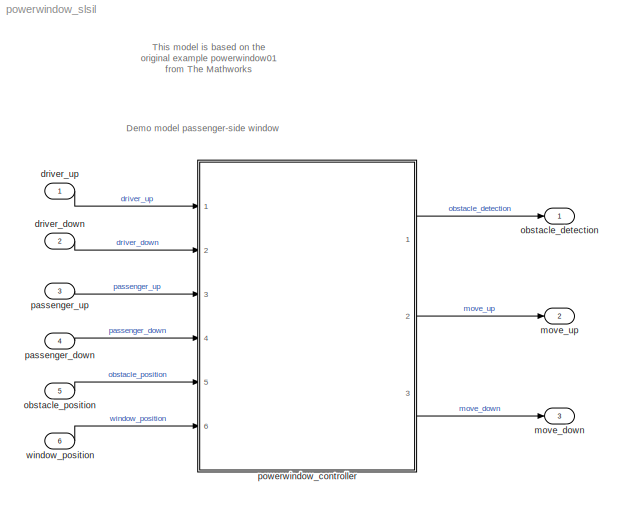
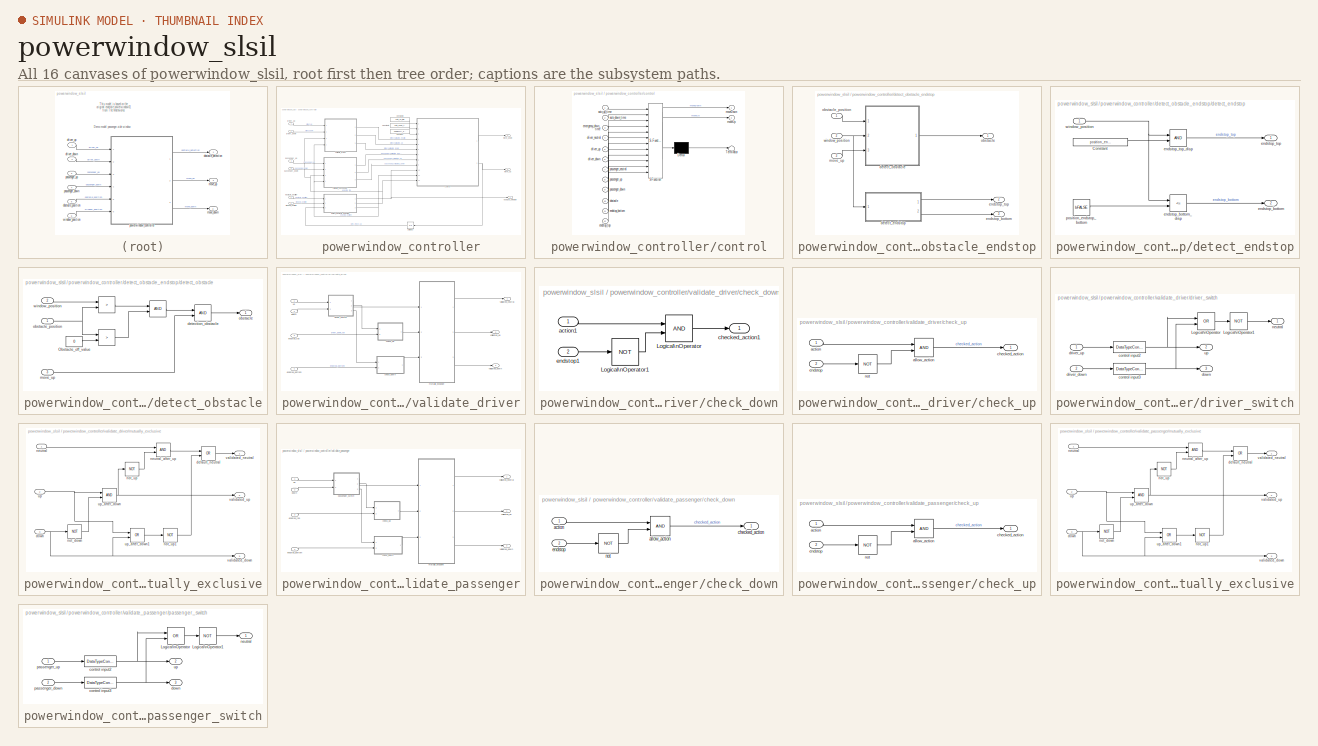
[diagram: thumbnail index - all 16 canvases of the model, root first then tree order]
MODEL powerwindow_slsil
KIND model
BLOCK [Inport] driver_down
  OutMax = 1
  OutMin = 0
  Port = 2
  SID = 456
BLOCK [Inport] driver_up
  OutMax = 1
  OutMin = 0
  SID = 455
BLOCK [Outport] move_down
  OutMax = 1
  OutMin = 0
  Port = 3
  SID = 464
BLOCK [Outport] move_up
  OutMax = 1
  OutMin = 0
  Port = 2
  SID = 463
BLOCK [Outport] obstacle_detection
  OutMax = 1
  OutMin = 0
  SID = 462
BLOCK [Inport] obstacle_position
  OutDataTypeStr = fixdt(0,16,0.001,0)
  OutMax = 0.45
  OutMin = 0
  Port = 5
  SID = 459
BLOCK [Inport] passenger_down
  OutMax = 1
  OutMin = 0
  Port = 4
  SID = 458
BLOCK [Inport] passenger_up
  OutMax = 1
  OutMin = 0
  Port = 3
  SID = 457
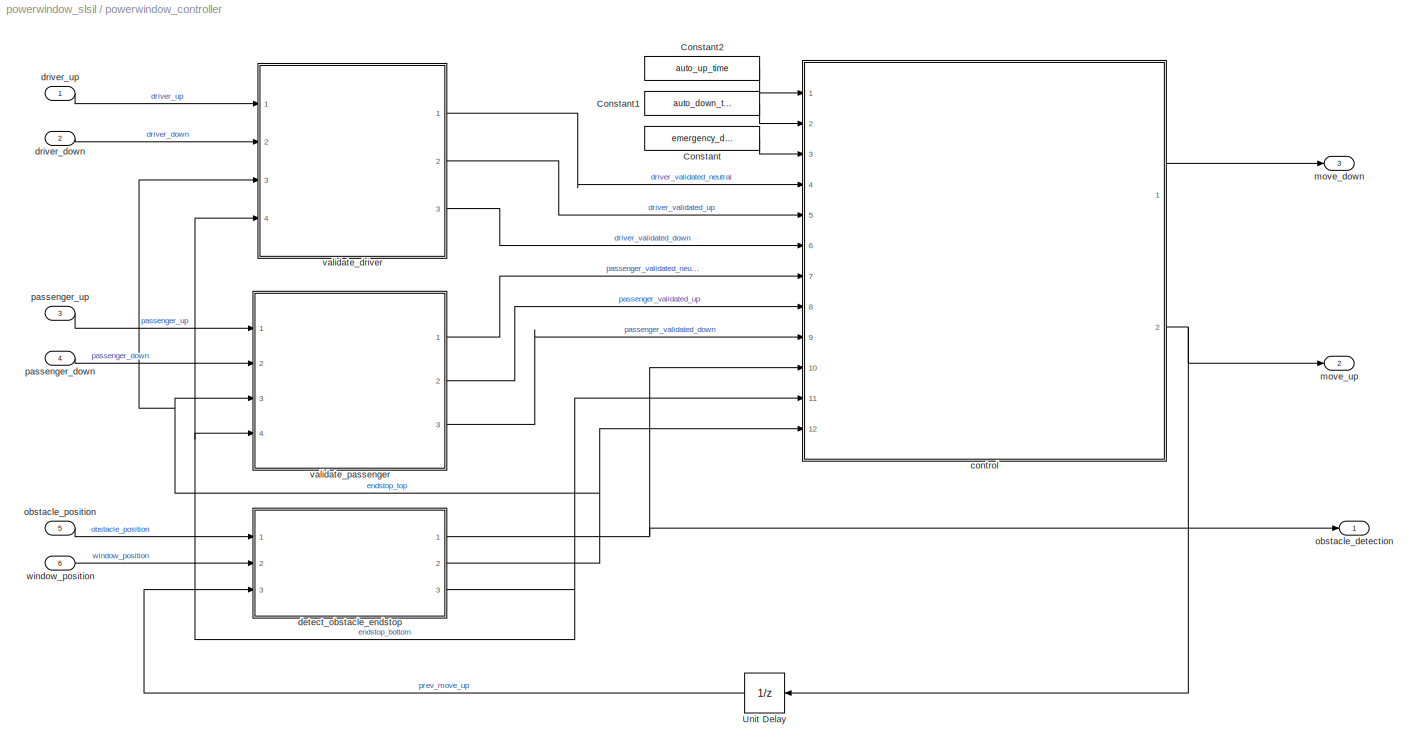
BLOCK [SubSystem] powerwindow_controller
  Ports = [6, 3]
  RTWFcnName = powerwindow_controller
  RTWFcnNameOpts = User specified
  RTWFileNameOpts = Use function name
  RTWSystemCode = Nonreusable function
  SID = 314
BLOCK [Constant] powerwindow_controller/Constant
  OutDataTypeStr = uint8
  OutMax = 255
  OutMin = 0
  SID = 323
  Value = emergency_down_time
BLOCK [Constant] powerwindow_controller/Constant1
  OutDataTypeStr = uint8
  OutMax = 255
  OutMin = 0
  SID = 324
  Value = auto_down_time
BLOCK [Constant] powerwindow_controller/Constant2
  OutDataTypeStr = uint8
  OutMax = 255
  OutMin = 0
  SID = 325
  Value = auto_up_time
BLOCK [UnitDelay] powerwindow_controller/Unit Delay
  HasFrameUpgradeWarning = on
  SID = 326
  SampleTime = -1
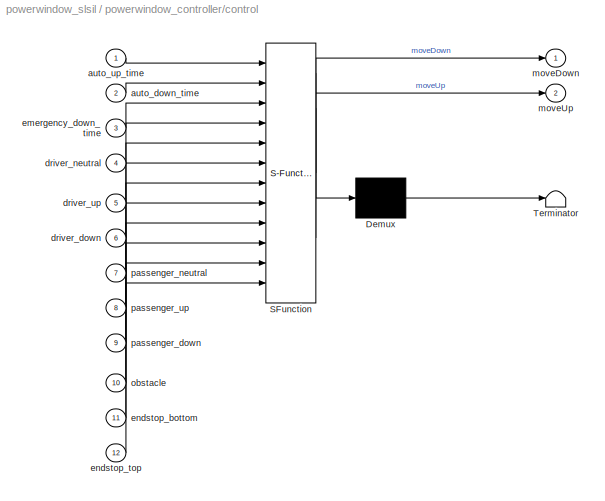
BLOCK [SubSystem] powerwindow_controller/control
  ErrorFcn = Stateflow.Translate.translate
  FunctionInterfaceSpec = Allow arguments
  PermitHierarchicalResolution = ExplicitOnly
  Ports = [12, 2]
  SFBlockType = Chart
  SID = 327
BLOCK [Demux] powerwindow_controller/control/ Demux 
  Outputs = 1
  Ports = [1, 1]
  SID = 327::66
BLOCK [S-Function] powerwindow_controller/control/ SFunction 
  EnableBusSupport = off
  FunctionName = sf_sfun
  PortCounts = [12 3]
  Ports = [12, 3]
  SFcnIsStateOwnerBlock = off
  SFunctionDeploymentMode = off
  SID = 327::65
  Tag = Stateflow S-Function powerwindow_slsil 1
BLOCK [Terminator] powerwindow_controller/control/ Terminator 
  SID = 327::67
BLOCK [Inport] powerwindow_controller/control/auto_down_time
  Port = 2
  SID = 327::40
BLOCK [Inport] powerwindow_controller/control/auto_up_time
  SID = 327::32
BLOCK [Inport] powerwindow_controller/control/driver_down
  Port = 6
  SID = 327::44
BLOCK [Inport] powerwindow_controller/control/driver_neutral
  Port = 4
  SID = 327::42
BLOCK [Inport] powerwindow_controller/control/driver_up
  Port = 5
  SID = 327::43
BLOCK [Inport] powerwindow_controller/control/emergency_down_time
  Port = 3
  SID = 327::41
BLOCK [Inport] powerwindow_controller/control/endstop_bottom
  Port = 11
  SID = 327::49
BLOCK [Inport] powerwindow_controller/control/endstop_top
  Port = 12
  SID = 327::50
BLOCK [Outport] powerwindow_controller/control/moveDown
  SID = 327::51
BLOCK [Outport] powerwindow_controller/control/moveUp
  Port = 2
  SID = 327::52
BLOCK [Inport] powerwindow_controller/control/obstacle
  Port = 10
  SID = 327::48
BLOCK [Inport] powerwindow_controller/control/passenger_down
  Port = 9
  SID = 327::47
BLOCK [Inport] powerwindow_controller/control/passenger_neutral
  Port = 7
  SID = 327::45
BLOCK [Inport] powerwindow_controller/control/passenger_up
  Port = 8
  SID = 327::46
BLOCK [SubSystem] powerwindow_controller/detect_obstacle_endstop
  AttributesFormatString = \n%<Description>
  Description = \n
  Ports = [3, 3]
  RTWFcnName = detect_obstacle_endstop
  RTWFcnNameOpts = User specified
  RTWFileNameOpts = Use subsystem name
  RTWSystemCode = Nonreusable function
  SID = 567
  TreatAsAtomicUnit = on
BLOCK [SubSystem] powerwindow_controller/detect_obstacle_endstop/detect_endstop
  Ports = [1, 2]
  SID = 571
BLOCK [Constant] powerwindow_controller/detect_obstacle_endstop/detect_endstop/Constant
  OutDataTypeStr = fixdt(0,16,0.001,0)
  OutMax = 0.45
  OutMin = 0.35
  SID = 573
  Value = position_endstop_top
BLOCK [Outport] powerwindow_controller/detect_obstacle_endstop/detect_endstop/endstop_bottom
  Port = 2
  SID = 578
BLOCK [RelationalOperator] powerwindow_controller/detect_obstacle_endstop/detect_endstop/endstop_bottom_disp
  AttributesFormatString = %<Description>
  InputSameDT = off
  Operator = <=
  OutDataTypeStr = boolean
  Ports = [2, 1]
  SID = 574
BLOCK [Outport] powerwindow_controller/detect_obstacle_endstop/detect_endstop/endstop_top
  SID = 577
BLOCK [RelationalOperator] powerwindow_controller/detect_obstacle_endstop/detect_endstop/endstop_top_disp
  AttributesFormatString = %<Description>
  InputSameDT = off
  OutDataTypeStr = boolean
  Ports = [2, 1]
  SID = 575
BLOCK [Constant] powerwindow_controller/detect_obstacle_endstop/detect_endstop/position_endstop_bottom
  OutDataTypeStr = Inherit: Inherit via back propagation
  SID = 576
  Value = bFALSE
BLOCK [Inport] powerwindow_controller/detect_obstacle_endstop/detect_endstop/window_position
  SID = 572
BLOCK [SubSystem] powerwindow_controller/detect_obstacle_endstop/detect_obstacle
  Ports = [3, 1]
  SID = 579
BLOCK [Logic] powerwindow_controller/detect_obstacle_endstop/detect_obstacle/ 
  AllPortsSameDT = off
  OutDataTypeStr = boolean
  Ports = [2, 1]
  SID = 583
BLOCK [RelationalOperator] powerwindow_controller/detect_obstacle_endstop/detect_obstacle/  
  InputSameDT = off
  Operator = >
  OutDataTypeStr = boolean
  Ports = [2, 1]
  SID = 584
BLOCK [RelationalOperator] powerwindow_controller/detect_obstacle_endstop/detect_obstacle/   
  InputSameDT = off
  Operator = >
  OutDataTypeStr = boolean
  Ports = [2, 1]
  SID = 585
BLOCK [Constant] powerwindow_controller/detect_obstacle_endstop/detect_obstacle/Obstacle_off_value
  OutDataTypeStr = Inherit: Inherit via back propagation
  SID = 586
  Value = 0
BLOCK [Logic] powerwindow_controller/detect_obstacle_endstop/detect_obstacle/detection_obstacle
  AllPortsSameDT = off
  AttributesFormatString = %<Description>
  OutDataTypeStr = boolean
  Ports = [2, 1]
  SID = 587
BLOCK [Inport] powerwindow_controller/detect_obstacle_endstop/detect_obstacle/move_up
  Port = 3
  SID = 582
BLOCK [Outport] powerwindow_controller/detect_obstacle_endstop/detect_obstacle/obstacle
  SID = 588
BLOCK [Inport] powerwindow_controller/detect_obstacle_endstop/detect_obstacle/obstacle_position
  SID = 580
BLOCK [Inport] powerwindow_controller/detect_obstacle_endstop/detect_obstacle/window_position
  Port = 2
  SID = 581
BLOCK [Outport] powerwindow_controller/detect_obstacle_endstop/endstop_bottom
  Port = 3
  SID = 591
BLOCK [Outport] powerwindow_controller/detect_obstacle_endstop/endstop_top
  Port = 2
  SID = 590
BLOCK [Inport] powerwindow_controller/detect_obstacle_endstop/move_up
  Port = 3
  SID = 570
BLOCK [Outport] powerwindow_controller/detect_obstacle_endstop/obstacle
  SID = 589
BLOCK [Inport] powerwindow_controller/detect_obstacle_endstop/obstacle_position
  SID = 568
BLOCK [Inport] powerwindow_controller/detect_obstacle_endstop/window_position
  Port = 2
  SID = 569
BLOCK [Inport] powerwindow_controller/driver_down
  OutDataTypeStr = boolean
  OutMax = 1
  OutMin = 0
  Port = 2
  SID = 318
BLOCK [Inport] powerwindow_controller/driver_up
  OutDataTypeStr = boolean
  OutMax = 1
  OutMin = 0
  PortDimensions = 1
  SID = 317
BLOCK [Outport] powerwindow_controller/move_down
  OutDataTypeStr = boolean
  OutMax = 1
  OutMin = 0
  Port = 3
  PortDimensions = 1
  SID = 443
BLOCK [Outport] powerwindow_controller/move_up
  OutDataTypeStr = boolean
  OutMax = 1
  OutMin = 0
  Port = 2
  PortDimensions = 1
  SID = 442
BLOCK [Outport] powerwindow_controller/obstacle_detection
  OutDataTypeStr = boolean
  OutMax = 1
  OutMin = 0
  PortDimensions = 1
  SID = 441
BLOCK [Inport] powerwindow_controller/obstacle_position
  OutDataTypeStr = fixdt(0,16,0.001,0)
  OutMax = 0.45
  OutMin = 0
  Port = 5
  PortDimensions = 1
  SID = 321
BLOCK [Inport] powerwindow_controller/passenger_down
  OutDataTypeStr = boolean
  OutMax = 1
  OutMin = 0
  Port = 4
  PortDimensions = 1
  SID = 320
BLOCK [Inport] powerwindow_controller/passenger_up
  OutDataTypeStr = boolean
  OutMax = 1
  OutMin = 0
  Port = 3
  PortDimensions = 1
  SID = 319
BLOCK [SubSystem] powerwindow_controller/validate_driver
  Ports = [4, 3]
  RTWFcnName = validate_driver
  RTWFcnNameOpts = User specified
  RTWFileNameOpts = Use subsystem name
  RTWSystemCode = Nonreusable function
  SID = 466
  TreatAsAtomicUnit = on
BLOCK [SubSystem] powerwindow_controller/validate_driver/check_down
  Ports = [2, 1]
  SID = 473
BLOCK [Logic] powerwindow_controller/validate_driver/check_down/Logical\nOperator
  AllPortsSameDT = off
  OutDataTypeStr = boolean
  Ports = [2, 1]
  SID = 476
BLOCK [Logic] powerwindow_controller/validate_driver/check_down/Logical\nOperator1
  AllPortsSameDT = off
  Inputs = 1
  Operator = NOT
  OutDataTypeStr = boolean
  Ports = [1, 1]
  SID = 477
BLOCK [Inport] powerwindow_controller/validate_driver/check_down/action1
  SID = 474
BLOCK [Outport] powerwindow_controller/validate_driver/check_down/checked_action1
  SID = 478
BLOCK [Inport] powerwindow_controller/validate_driver/check_down/endstop1
  Port = 2
  SID = 475
BLOCK [SubSystem] powerwindow_controller/validate_driver/check_up
  Ports = [2, 1]
  SID = 479
BLOCK [Inport] powerwindow_controller/validate_driver/check_up/action
  SID = 480
BLOCK [Logic] powerwindow_controller/validate_driver/check_up/allow_action
  AllPortsSameDT = off
  OutDataTypeStr = boolean
  Ports = [2, 1]
  SID = 482
BLOCK [Outport] powerwindow_controller/validate_driver/check_up/checked_action
  SID = 484
BLOCK [Inport] powerwindow_controller/validate_driver/check_up/endstop
  Port = 2
  SID = 481
BLOCK [Logic] powerwindow_controller/validate_driver/check_up/not
  AllPortsSameDT = off
  Inputs = 1
  Operator = NOT
  OutDataTypeStr = boolean
  Ports = [1, 1]
  SID = 483
BLOCK [Inport] powerwindow_controller/validate_driver/down
  OutDataTypeStr = boolean
  Port = 2
  PortDimensions = 1
  SID = 470
  SampleTime = [0.01,0]
  SamplingMode = Sample based
  SignalType = real
BLOCK [SubSystem] powerwindow_controller/validate_driver/driver_switch
  Ports = [2, 3]
  SID = 485
BLOCK [Logic] powerwindow_controller/validate_driver/driver_switch/Logical\nOperator
  AllPortsSameDT = off
  Operator = OR
  OutDataTypeStr = boolean
  Ports = [2, 1]
  SID = 488
BLOCK [Logic] powerwindow_controller/validate_driver/driver_switch/Logical\nOperator1
  AllPortsSameDT = off
  Inputs = 1
  Operator = NOT
  OutDataTypeStr = boolean
  Ports = [1, 1]
  SID = 489
BLOCK [DataTypeConversion] powerwindow_controller/validate_driver/driver_switch/control input2
  OutDataTypeStr = boolean
  SID = 490
BLOCK [DataTypeConversion] powerwindow_controller/validate_driver/driver_switch/control input3
  OutDataTypeStr = boolean
  SID = 491
BLOCK [Outport] powerwindow_controller/validate_driver/driver_switch/down
  Port = 3
  SID = 494
BLOCK [Inport] powerwindow_controller/validate_driver/driver_switch/driver_down
  Port = 2
  SID = 487
BLOCK [Inport] powerwindow_controller/validate_driver/driver_switch/driver_up
  SID = 486
BLOCK [Outport] powerwindow_controller/validate_driver/driver_switch/neutral
  SID = 492
BLOCK [Outport] powerwindow_controller/validate_driver/driver_switch/up
  Port = 2
  SID = 493
BLOCK [Inport] powerwindow_controller/validate_driver/endstop_bottom
  OutDataTypeStr = boolean
  Port = 4
  PortDimensions = 1
  SID = 472
  SampleTime = [0.01,0]
  SamplingMode = Sample based
  SignalType = real
BLOCK [Inport] powerwindow_controller/validate_driver/endstop_top
  OutDataTypeStr = boolean
  Port = 3
  PortDimensions = 1
  SID = 471
  SampleTime = [0.01,0]
  SamplingMode = Sample based
  SignalType = real
BLOCK [SubSystem] powerwindow_controller/validate_driver/mutually_exclusive
  Ports = [3, 3]
  SID = 495
BLOCK [Logic] powerwindow_controller/validate_driver/mutually_exclusive/default_neutral
  AllPortsSameDT = off
  Operator = OR
  OutDataTypeStr = boolean
  Ports = [2, 1]
  SID = 499
BLOCK [Inport] powerwindow_controller/validate_driver/mutually_exclusive/down
  Port = 3
  SID = 498
BLOCK [Inport] powerwindow_controller/validate_driver/mutually_exclusive/neutral
  SID = 496
BLOCK [Logic] powerwindow_controller/validate_driver/mutually_exclusive/neutral_after_up
  AllPortsSameDT = off
  OutDataTypeStr = boolean
  Ports = [2, 1]
  SID = 500
BLOCK [Logic] powerwindow_controller/validate_driver/mutually_exclusive/not_down
  AllPortsSameDT = off
  Inputs = 1
  Operator = NOT
  OutDataTypeStr = boolean
  Ports = [1, 1]
  SID = 501
BLOCK [Logic] powerwindow_controller/validate_driver/mutually_exclusive/not_up
  AllPortsSameDT = off
  Inputs = 1
  Operator = NOT
  OutDataTypeStr = boolean
  Ports = [1, 1]
  SID = 502
BLOCK [Logic] powerwindow_controller/validate_driver/mutually_exclusive/not_up1
  AllPortsSameDT = off
  Inputs = 1
  Operator = NOT
  OutDataTypeStr = boolean
  Ports = [1, 1]
  SID = 503
BLOCK [Inport] powerwindow_controller/validate_driver/mutually_exclusive/up
  Port = 2
  SID = 497
BLOCK [Logic] powerwindow_controller/validate_driver/mutually_exclusive/up_after_down
  AllPortsSameDT = off
  OutDataTypeStr = boolean
  Ports = [2, 1]
  SID = 504
BLOCK [Logic] powerwindow_controller/validate_driver/mutually_exclusive/up_after_down1
  AllPortsSameDT = off
  Operator = OR
  OutDataTypeStr = boolean
  Ports = [2, 1]
  SID = 505
BLOCK [Outport] powerwindow_controller/validate_driver/mutually_exclusive/validated_down
  Port = 3
  SID = 508
BLOCK [Outport] powerwindow_controller/validate_driver/mutually_exclusive/validated_neutral
  SID = 506
BLOCK [Outport] powerwindow_controller/validate_driver/mutually_exclusive/validated_up
  Port = 2
  SID = 507
BLOCK [Inport] powerwindow_controller/validate_driver/up
  OutDataTypeStr = boolean
  PortDimensions = 1
  SID = 469
  SampleTime = [0.01,0]
  SamplingMode = Sample based
  SignalType = real
BLOCK [Outport] powerwindow_controller/validate_driver/validated_down
  OutDataTypeStr = boolean
  Port = 3
  PortDimensions = 1
  SID = 511
  SampleTime = [0.01,0]
  SamplingMode = Sample based
  SignalType = real
BLOCK [Outport] powerwindow_controller/validate_driver/validated_neutral
  OutDataTypeStr = boolean
  PortDimensions = 1
  SID = 509
  SampleTime = [0.01,0]
  SamplingMode = Sample based
  SignalType = real
BLOCK [Outport] powerwindow_controller/validate_driver/validated_up
  OutDataTypeStr = boolean
  Port = 2
  PortDimensions = 1
  SID = 510
  SampleTime = [0.01,0]
  SamplingMode = Sample based
  SignalType = real
BLOCK [SubSystem] powerwindow_controller/validate_passenger
  Ports = [4, 3]
  RTWFcnName = validate_passenger
  RTWFcnNameOpts = User specified
  RTWFileNameOpts = Use function name
  RTWSystemCode = Nonreusable function
  SID = 397
  TreatAsAtomicUnit = on
BLOCK [SubSystem] powerwindow_controller/validate_passenger/check_down
  Ports = [2, 1]
  SID = 402
BLOCK [Inport] powerwindow_controller/validate_passenger/check_down/action
  SID = 403
BLOCK [Logic] powerwindow_controller/validate_passenger/check_down/allow_action
  AllPortsSameDT = off
  OutDataTypeStr = boolean
  Ports = [2, 1]
  SID = 405
BLOCK [Outport] powerwindow_controller/validate_passenger/check_down/checked_action
  SID = 407
BLOCK [Inport] powerwindow_controller/validate_passenger/check_down/endstop
  Port = 2
  SID = 404
BLOCK [Logic] powerwindow_controller/validate_passenger/check_down/not
  AllPortsSameDT = off
  Inputs = 1
  Operator = NOT
  OutDataTypeStr = boolean
  Ports = [1, 1]
  SID = 406
BLOCK [SubSystem] powerwindow_controller/validate_passenger/check_up
  Ports = [2, 1]
  SID = 408
BLOCK [Inport] powerwindow_controller/validate_passenger/check_up/action
  SID = 409
BLOCK [Logic] powerwindow_controller/validate_passenger/check_up/allow_action
  AllPortsSameDT = off
  OutDataTypeStr = boolean
  Ports = [2, 1]
  SID = 411
BLOCK [Outport] powerwindow_controller/validate_passenger/check_up/checked_action
  SID = 413
BLOCK [Inport] powerwindow_controller/validate_passenger/check_up/endstop
  Port = 2
  SID = 410
BLOCK [Logic] powerwindow_controller/validate_passenger/check_up/not
  AllPortsSameDT = off
  Inputs = 1
  Operator = NOT
  OutDataTypeStr = boolean
  Ports = [1, 1]
  SID = 412
BLOCK [Inport] powerwindow_controller/validate_passenger/down
  Port = 2
  SID = 399
BLOCK [Inport] powerwindow_controller/validate_passenger/endstop_bottom
  Port = 4
  SID = 401
BLOCK [Inport] powerwindow_controller/validate_passenger/endstop_top
  Port = 3
  SID = 400
BLOCK [SubSystem] powerwindow_controller/validate_passenger/mutually_exclusive
  Ports = [3, 3]
  SID = 414
BLOCK [Logic] powerwindow_controller/validate_passenger/mutually_exclusive/default_neutral
  AllPortsSameDT = off
  Operator = OR
  OutDataTypeStr = boolean
  Ports = [2, 1]
  SID = 418
BLOCK [Inport] powerwindow_controller/validate_passenger/mutually_exclusive/down
  Port = 3
  SID = 417
BLOCK [Inport] powerwindow_controller/validate_passenger/mutually_exclusive/neutral
  SID = 415
BLOCK [Logic] powerwindow_controller/validate_passenger/mutually_exclusive/neutral_after_up
  AllPortsSameDT = off
  OutDataTypeStr = boolean
  Ports = [2, 1]
  SID = 419
BLOCK [Logic] powerwindow_controller/validate_passenger/mutually_exclusive/not_down
  AllPortsSameDT = off
  Inputs = 1
  Operator = NOT
  OutDataTypeStr = boolean
  Ports = [1, 1]
  SID = 420
BLOCK [Logic] powerwindow_controller/validate_passenger/mutually_exclusive/not_up
  AllPortsSameDT = off
  Inputs = 1
  Operator = NOT
  OutDataTypeStr = boolean
  Ports = [1, 1]
  SID = 421
BLOCK [Logic] powerwindow_controller/validate_passenger/mutually_exclusive/not_up1
  AllPortsSameDT = off
  Inputs = 1
  Operator = NOT
  OutDataTypeStr = boolean
  Ports = [1, 1]
  SID = 422
BLOCK [Inport] powerwindow_controller/validate_passenger/mutually_exclusive/up
  Port = 2
  SID = 416
BLOCK [Logic] powerwindow_controller/validate_passenger/mutually_exclusive/up_after_down
  AllPortsSameDT = off
  OutDataTypeStr = boolean
  Ports = [2, 1]
  SID = 423
BLOCK [Logic] powerwindow_controller/validate_passenger/mutually_exclusive/up_after_down1
  AllPortsSameDT = off
  Operator = OR
  OutDataTypeStr = boolean
  Ports = [2, 1]
  SID = 424
BLOCK [Outport] powerwindow_controller/validate_passenger/mutually_exclusive/validated_down
  Port = 3
  SID = 427
BLOCK [Outport] powerwindow_controller/validate_passenger/mutually_exclusive/validated_neutral
  SID = 425
BLOCK [Outport] powerwindow_controller/validate_passenger/mutually_exclusive/validated_up
  Port = 2
  SID = 426
BLOCK [SubSystem] powerwindow_controller/validate_passenger/passenger_switch
  Ports = [2, 3]
  SID = 428
BLOCK [Logic] powerwindow_controller/validate_passenger/passenger_switch/Logical\nOperator
  AllPortsSameDT = off
  Operator = OR
  OutDataTypeStr = boolean
  Ports = [2, 1]
  SID = 431
BLOCK [Logic] powerwindow_controller/validate_passenger/passenger_switch/Logical\nOperator1
  AllPortsSameDT = off
  Inputs = 1
  Operator = NOT
  OutDataTypeStr = boolean
  Ports = [1, 1]
  SID = 432
BLOCK [DataTypeConversion] powerwindow_controller/validate_passenger/passenger_switch/control input2
  OutDataTypeStr = boolean
  SID = 433
BLOCK [DataTypeConversion] powerwindow_controller/validate_passenger/passenger_switch/control input3
  OutDataTypeStr = boolean
  SID = 434
BLOCK [Outport] powerwindow_controller/validate_passenger/passenger_switch/down
  Port = 3
  SID = 437
BLOCK [Outport] powerwindow_controller/validate_passenger/passenger_switch/neutral
  SID = 435
BLOCK [Inport] powerwindow_controller/validate_passenger/passenger_switch/passenger_down
  Port = 2
  SID = 430
BLOCK [Inport] powerwindow_controller/validate_passenger/passenger_switch/passenger_up
  SID = 429
BLOCK [Outport] powerwindow_controller/validate_passenger/passenger_switch/up
  Port = 2
  SID = 436
BLOCK [Inport] powerwindow_controller/validate_passenger/up
  SID = 398
BLOCK [Outport] powerwindow_controller/validate_passenger/validated_down
  Port = 3
  SID = 440
BLOCK [Outport] powerwindow_controller/validate_passenger/validated_neutral
  SID = 438
BLOCK [Outport] powerwindow_controller/validate_passenger/validated_up
  Port = 2
  SID = 439
BLOCK [Inport] powerwindow_controller/window_position
  OutDataTypeStr = fixdt(0,16,0.001,0)
  OutMax = 0.45
  OutMin = 0
  Port = 6
  PortDimensions = 1
  SID = 322
BLOCK [Inport] window_position
  OutDataTypeStr = fixdt(0,16,0.001,0)
  OutMax = 0.45
  OutMin = 0
  Port = 6
  SID = 460
ANNOTATION (root): Demo model passenger-side window
ANNOTATION (root): This model is based on the\noriginal example powerwindow01\nfrom The Mathworks
ANNOTATION powerwindow_controller: \n \n
LINE driver_down:1 -> powerwindow_controller:2
LINE driver_up:1 -> powerwindow_controller:1
LINE obstacle_position:1 -> powerwindow_controller:5
LINE passenger_down:1 -> powerwindow_controller:4
LINE passenger_up:1 -> powerwindow_controller:3
LINE powerwindow_controller/Constant1:1 -> powerwindow_controller/control:2
LINE powerwindow_controller/Constant2:1 -> powerwindow_controller/control:1
LINE powerwindow_controller/Constant:1 -> powerwindow_controller/control:3
LINE powerwindow_controller/Unit Delay:1 -> powerwindow_controller/detect_obstacle_endstop:3
LINE powerwindow_controller/control/ Demux :1 -> powerwindow_controller/control/ Terminator :1
LINE powerwindow_controller/control/ SFunction :1 -> powerwindow_controller/control/ Demux :1
LINE powerwindow_controller/control/ SFunction :2 -> powerwindow_controller/control/moveDown:1
LINE powerwindow_controller/control/ SFunction :3 -> powerwindow_controller/control/moveUp:1
LINE powerwindow_controller/control/auto_down_time:1 -> powerwindow_controller/control/ SFunction :2
LINE powerwindow_controller/control/auto_up_time:1 -> powerwindow_controller/control/ SFunction :1
LINE powerwindow_controller/control/driver_down:1 -> powerwindow_controller/control/ SFunction :6
LINE powerwindow_controller/control/driver_neutral:1 -> powerwindow_controller/control/ SFunction :4
LINE powerwindow_controller/control/driver_up:1 -> powerwindow_controller/control/ SFunction :5
LINE powerwindow_controller/control/emergency_down_time:1 -> powerwindow_controller/control/ SFunction :3
LINE powerwindow_controller/control/endstop_bottom:1 -> powerwindow_controller/control/ SFunction :11
LINE powerwindow_controller/control/endstop_top:1 -> powerwindow_controller/control/ SFunction :12
LINE powerwindow_controller/control/obstacle:1 -> powerwindow_controller/control/ SFunction :10
LINE powerwindow_controller/control/passenger_down:1 -> powerwindow_controller/control/ SFunction :9
LINE powerwindow_controller/control/passenger_neutral:1 -> powerwindow_controller/control/ SFunction :7
LINE powerwindow_controller/control/passenger_up:1 -> powerwindow_controller/control/ SFunction :8
LINE powerwindow_controller/control:1 -> powerwindow_controller/move_down:1
NET powerwindow_controller/control:2 -> powerwindow_controller/Unit Delay:1, powerwindow_controller/move_up:1
LINE powerwindow_controller/detect_obstacle_endstop/detect_endstop/Constant:1 -> powerwindow_controller/detect_obstacle_endstop/detect_endstop/endstop_top_disp:2
LINE powerwindow_controller/detect_obstacle_endstop/detect_endstop/endstop_bottom_disp:1 -> powerwindow_controller/detect_obstacle_endstop/detect_endstop/endstop_bottom:1
LINE powerwindow_controller/detect_obstacle_endstop/detect_endstop/endstop_top_disp:1 -> powerwindow_controller/detect_obstacle_endstop/detect_endstop/endstop_top:1
LINE powerwindow_controller/detect_obstacle_endstop/detect_endstop/position_endstop_bottom:1 -> powerwindow_controller/detect_obstacle_endstop/detect_endstop/endstop_bottom_disp:2
NET powerwindow_controller/detect_obstacle_endstop/detect_endstop/window_position:1 -> powerwindow_controller/detect_obstacle_endstop/detect_endstop/endstop_bottom_disp:1, powerwindow_controller/detect_obstacle_endstop/detect_endstop/endstop_top_disp:1
LINE powerwindow_controller/detect_obstacle_endstop/detect_endstop:1 -> powerwindow_controller/detect_obstacle_endstop/endstop_top:1
LINE powerwindow_controller/detect_obstacle_endstop/detect_endstop:2 -> powerwindow_controller/detect_obstacle_endstop/endstop_bottom:1
LINE powerwindow_controller/detect_obstacle_endstop/detect_obstacle/   :1 -> powerwindow_controller/detect_obstacle_endstop/detect_obstacle/ :2
LINE powerwindow_controller/detect_obstacle_endstop/detect_obstacle/  :1 -> powerwindow_controller/detect_obstacle_endstop/detect_obstacle/ :1
LINE powerwindow_controller/detect_obstacle_endstop/detect_obstacle/ :1 -> powerwindow_controller/detect_obstacle_endstop/detect_obstacle/detection_obstacle:1
LINE powerwindow_controller/detect_obstacle_endstop/detect_obstacle/Obstacle_off_value:1 -> powerwindow_controller/detect_obstacle_endstop/detect_obstacle/   :2
LINE powerwindow_controller/detect_obstacle_endstop/detect_obstacle/detection_obstacle:1 -> powerwindow_controller/detect_obstacle_endstop/detect_obstacle/obstacle:1
LINE powerwindow_controller/detect_obstacle_endstop/detect_obstacle/move_up:1 -> powerwindow_controller/detect_obstacle_endstop/detect_obstacle/detection_obstacle:2
NET powerwindow_controller/detect_obstacle_endstop/detect_obstacle/obstacle_position:1 -> powerwindow_controller/detect_obstacle_endstop/detect_obstacle/   :1, powerwindow_controller/detect_obstacle_endstop/detect_obstacle/  :2
LINE powerwindow_controller/detect_obstacle_endstop/detect_obstacle/window_position:1 -> powerwindow_controller/detect_obstacle_endstop/detect_obstacle/  :1
LINE powerwindow_controller/detect_obstacle_endstop/detect_obstacle:1 -> powerwindow_controller/detect_obstacle_endstop/obstacle:1
LINE powerwindow_controller/detect_obstacle_endstop/move_up:1 -> powerwindow_controller/detect_obstacle_endstop/detect_obstacle:3
LINE powerwindow_controller/detect_obstacle_endstop/obstacle_position:1 -> powerwindow_controller/detect_obstacle_endstop/detect_obstacle:1
NET powerwindow_controller/detect_obstacle_endstop/window_position:1 -> powerwindow_controller/detect_obstacle_endstop/detect_endstop:1, powerwindow_controller/detect_obstacle_endstop/detect_obstacle:2
NET powerwindow_controller/detect_obstacle_endstop:1 -> powerwindow_controller/control:10, powerwindow_controller/obstacle_detection:1
NET powerwindow_controller/detect_obstacle_endstop:2 -> powerwindow_controller/control:12, powerwindow_controller/validate_driver:3, powerwindow_controller/validate_passenger:3
NET powerwindow_controller/detect_obstacle_endstop:3 -> powerwindow_controller/control:11, powerwindow_controller/validate_driver:4, powerwindow_controller/validate_passenger:4
LINE powerwindow_controller/driver_down:1 -> powerwindow_controller/validate_driver:2
LINE powerwindow_controller/driver_up:1 -> powerwindow_controller/validate_driver:1
LINE powerwindow_controller/obstacle_position:1 -> powerwindow_controller/detect_obstacle_endstop:1
LINE powerwindow_controller/passenger_down:1 -> powerwindow_controller/validate_passenger:2
LINE powerwindow_controller/passenger_up:1 -> powerwindow_controller/validate_passenger:1
LINE powerwindow_controller/validate_driver/check_down/Logical\nOperator1:1 -> powerwindow_controller/validate_driver/check_down/Logical\nOperator:2
LINE powerwindow_controller/validate_driver/check_down/Logical\nOperator:1 -> powerwindow_controller/validate_driver/check_down/checked_action1:1
LINE powerwindow_controller/validate_driver/check_down/action1:1 -> powerwindow_controller/validate_driver/check_down/Logical\nOperator:1
LINE powerwindow_controller/validate_driver/check_down/endstop1:1 -> powerwindow_controller/validate_driver/check_down/Logical\nOperator1:1
LINE powerwindow_controller/validate_driver/check_down:1 -> powerwindow_controller/validate_driver/mutually_exclusive:3
LINE powerwindow_controller/validate_driver/check_up/action:1 -> powerwindow_controller/validate_driver/check_up/allow_action:1
LINE powerwindow_controller/validate_driver/check_up/allow_action:1 -> powerwindow_controller/validate_driver/check_up/checked_action:1
LINE powerwindow_controller/validate_driver/check_up/endstop:1 -> powerwindow_controller/validate_driver/check_up/not:1
LINE powerwindow_controller/validate_driver/check_up/not:1 -> powerwindow_controller/validate_driver/check_up/allow_action:2
LINE powerwindow_controller/validate_driver/check_up:1 -> powerwindow_controller/validate_driver/mutually_exclusive:2
LINE powerwindow_controller/validate_driver/down:1 -> powerwindow_controller/validate_driver/driver_switch:2
LINE powerwindow_controller/validate_driver/driver_switch/Logical\nOperator1:1 -> powerwindow_controller/validate_driver/driver_switch/neutral:1
LINE powerwindow_controller/validate_driver/driver_switch/Logical\nOperator:1 -> powerwindow_controller/validate_driver/driver_switch/Logical\nOperator1:1
NET powerwindow_controller/validate_driver/driver_switch/control input2:1 -> powerwindow_controller/validate_driver/driver_switch/Logical\nOperator:1, powerwindow_controller/validate_driver/driver_switch/up:1
NET powerwindow_controller/validate_driver/driver_switch/control input3:1 -> powerwindow_controller/validate_driver/driver_switch/Logical\nOperator:2, powerwindow_controller/validate_driver/driver_switch/down:1
LINE powerwindow_controller/validate_driver/driver_switch/driver_down:1 -> powerwindow_controller/validate_driver/driver_switch/control input3:1
LINE powerwindow_controller/validate_driver/driver_switch/driver_up:1 -> powerwindow_controller/validate_driver/driver_switch/control input2:1
LINE powerwindow_controller/validate_driver/driver_switch:1 -> powerwindow_controller/validate_driver/mutually_exclusive:1
LINE powerwindow_controller/validate_driver/driver_switch:2 -> powerwindow_controller/validate_driver/check_up:1
LINE powerwindow_controller/validate_driver/driver_switch:3 -> powerwindow_controller/validate_driver/check_down:1
LINE powerwindow_controller/validate_driver/endstop_bottom:1 -> powerwindow_controller/validate_driver/check_down:2
LINE powerwindow_controller/validate_driver/endstop_top:1 -> powerwindow_controller/validate_driver/check_up:2
LINE powerwindow_controller/validate_driver/mutually_exclusive/default_neutral:1 -> powerwindow_controller/validate_driver/mutually_exclusive/validated_neutral:1
NET powerwindow_controller/validate_driver/mutually_exclusive/down:1 -> powerwindow_controller/validate_driver/mutually_exclusive/not_down:1, powerwindow_controller/validate_driver/mutually_exclusive/up_after_down1:2, powerwindow_controller/validate_driver/mutually_exclusive/validated_down:1
LINE powerwindow_controller/validate_driver/mutually_exclusive/neutral:1 -> powerwindow_controller/validate_driver/mutually_exclusive/neutral_after_up:1
LINE powerwindow_controller/validate_driver/mutually_exclusive/neutral_after_up:1 -> powerwindow_controller/validate_driver/mutually_exclusive/default_neutral:1
LINE powerwindow_controller/validate_driver/mutually_exclusive/not_down:1 -> powerwindow_controller/validate_driver/mutually_exclusive/up_after_down:2
LINE powerwindow_controller/validate_driver/mutually_exclusive/not_up1:1 -> powerwindow_controller/validate_driver/mutually_exclusive/default_neutral:2
LINE powerwindow_controller/validate_driver/mutually_exclusive/not_up:1 -> powerwindow_controller/validate_driver/mutually_exclusive/neutral_after_up:2
NET powerwindow_controller/validate_driver/mutually_exclusive/up:1 -> powerwindow_controller/validate_driver/mutually_exclusive/up_after_down1:1, powerwindow_controller/validate_driver/mutually_exclusive/up_after_down:1
LINE powerwindow_controller/validate_driver/mutually_exclusive/up_after_down1:1 -> powerwindow_controller/validate_driver/mutually_exclusive/not_up1:1
NET powerwindow_controller/validate_driver/mutually_exclusive/up_after_down:1 -> powerwindow_controller/validate_driver/mutually_exclusive/not_up:1, powerwindow_controller/validate_driver/mutually_exclusive/validated_up:1
LINE powerwindow_controller/validate_driver/mutually_exclusive:1 -> powerwindow_controller/validate_driver/validated_neutral:1
LINE powerwindow_controller/validate_driver/mutually_exclusive:2 -> powerwindow_controller/validate_driver/validated_up:1
LINE powerwindow_controller/validate_driver/mutually_exclusive:3 -> powerwindow_controller/validate_driver/validated_down:1
LINE powerwindow_controller/validate_driver/up:1 -> powerwindow_controller/validate_driver/driver_switch:1
LINE powerwindow_controller/validate_driver:1 -> powerwindow_controller/control:4
LINE powerwindow_controller/validate_driver:2 -> powerwindow_controller/control:5
LINE powerwindow_controller/validate_driver:3 -> powerwindow_controller/control:6
LINE powerwindow_controller/validate_passenger/check_down/action:1 -> powerwindow_controller/validate_passenger/check_down/allow_action:1
LINE powerwindow_controller/validate_passenger/check_down/allow_action:1 -> powerwindow_controller/validate_passenger/check_down/checked_action:1
LINE powerwindow_controller/validate_passenger/check_down/endstop:1 -> powerwindow_controller/validate_passenger/check_down/not:1
LINE powerwindow_controller/validate_passenger/check_down/not:1 -> powerwindow_controller/validate_passenger/check_down/allow_action:2
LINE powerwindow_controller/validate_passenger/check_down:1 -> powerwindow_controller/validate_passenger/mutually_exclusive:3
LINE powerwindow_controller/validate_passenger/check_up/action:1 -> powerwindow_controller/validate_passenger/check_up/allow_action:1
LINE powerwindow_controller/validate_passenger/check_up/allow_action:1 -> powerwindow_controller/validate_passenger/check_up/checked_action:1
LINE powerwindow_controller/validate_passenger/check_up/endstop:1 -> powerwindow_controller/validate_passenger/check_up/not:1
LINE powerwindow_controller/validate_passenger/check_up/not:1 -> powerwindow_controller/validate_passenger/check_up/allow_action:2
LINE powerwindow_controller/validate_passenger/check_up:1 -> powerwindow_controller/validate_passenger/mutually_exclusive:2
LINE powerwindow_controller/validate_passenger/down:1 -> powerwindow_controller/validate_passenger/passenger_switch:2
LINE powerwindow_controller/validate_passenger/endstop_bottom:1 -> powerwindow_controller/validate_passenger/check_down:2
LINE powerwindow_controller/validate_passenger/endstop_top:1 -> powerwindow_controller/validate_passenger/check_up:2
LINE powerwindow_controller/validate_passenger/mutually_exclusive/default_neutral:1 -> powerwindow_controller/validate_passenger/mutually_exclusive/validated_neutral:1
NET powerwindow_controller/validate_passenger/mutually_exclusive/down:1 -> powerwindow_controller/validate_passenger/mutually_exclusive/not_down:1, powerwindow_controller/validate_passenger/mutually_exclusive/up_after_down1:2, powerwindow_controller/validate_passenger/mutually_exclusive/validated_down:1
LINE powerwindow_controller/validate_passenger/mutually_exclusive/neutral:1 -> powerwindow_controller/validate_passenger/mutually_exclusive/neutral_after_up:1
LINE powerwindow_controller/validate_passenger/mutually_exclusive/neutral_after_up:1 -> powerwindow_controller/validate_passenger/mutually_exclusive/default_neutral:1
LINE powerwindow_controller/validate_passenger/mutually_exclusive/not_down:1 -> powerwindow_controller/validate_passenger/mutually_exclusive/up_after_down:2
LINE powerwindow_controller/validate_passenger/mutually_exclusive/not_up1:1 -> powerwindow_controller/validate_passenger/mutually_exclusive/default_neutral:2
LINE powerwindow_controller/validate_passenger/mutually_exclusive/not_up:1 -> powerwindow_controller/validate_passenger/mutually_exclusive/neutral_after_up:2
NET powerwindow_controller/validate_passenger/mutually_exclusive/up:1 -> powerwindow_controller/validate_passenger/mutually_exclusive/up_after_down1:1, powerwindow_controller/validate_passenger/mutually_exclusive/up_after_down:1
LINE powerwindow_controller/validate_passenger/mutually_exclusive/up_after_down1:1 -> powerwindow_controller/validate_passenger/mutually_exclusive/not_up1:1
NET powerwindow_controller/validate_passenger/mutually_exclusive/up_after_down:1 -> powerwindow_controller/validate_passenger/mutually_exclusive/not_up:1, powerwindow_controller/validate_passenger/mutually_exclusive/validated_up:1
LINE powerwindow_controller/validate_passenger/mutually_exclusive:1 -> powerwindow_controller/validate_passenger/validated_neutral:1
LINE powerwindow_controller/validate_passenger/mutually_exclusive:2 -> powerwindow_controller/validate_passenger/validated_up:1
LINE powerwindow_controller/validate_passenger/mutually_exclusive:3 -> powerwindow_controller/validate_passenger/validated_down:1
LINE powerwindow_controller/validate_passenger/passenger_switch/Logical\nOperator1:1 -> powerwindow_controller/validate_passenger/passenger_switch/neutral:1
LINE powerwindow_controller/validate_passenger/passenger_switch/Logical\nOperator:1 -> powerwindow_controller/validate_passenger/passenger_switch/Logical\nOperator1:1
NET powerwindow_controller/validate_passenger/passenger_switch/control input2:1 -> powerwindow_controller/validate_passenger/passenger_switch/Logical\nOperator:1, powerwindow_controller/validate_passenger/passenger_switch/up:1
NET powerwindow_controller/validate_passenger/passenger_switch/control input3:1 -> powerwindow_controller/validate_passenger/passenger_switch/Logical\nOperator:2, powerwindow_controller/validate_passenger/passenger_switch/down:1
LINE powerwindow_controller/validate_passenger/passenger_switch/passenger_down:1 -> powerwindow_controller/validate_passenger/passenger_switch/control input3:1
LINE powerwindow_controller/validate_passenger/passenger_switch/passenger_up:1 -> powerwindow_controller/validate_passenger/passenger_switch/control input2:1
LINE powerwindow_controller/validate_passenger/passenger_switch:1 -> powerwindow_controller/validate_passenger/mutually_exclusive:1
LINE powerwindow_controller/validate_passenger/passenger_switch:2 -> powerwindow_controller/validate_passenger/check_up:1
LINE powerwindow_controller/validate_passenger/passenger_switch:3 -> powerwindow_controller/validate_passenger/check_down:1
LINE powerwindow_controller/validate_passenger/up:1 -> powerwindow_controller/validate_passenger/passenger_switch:1
LINE powerwindow_controller/validate_passenger:1 -> powerwindow_controller/control:7
LINE powerwindow_controller/validate_passenger:2 -> powerwindow_controller/control:8
LINE powerwindow_controller/validate_passenger:3 -> powerwindow_controller/control:9
LINE powerwindow_controller/window_position:1 -> powerwindow_controller/detect_obstacle_endstop:2
LINE powerwindow_controller:1 -> obstacle_detection:1
LINE powerwindow_controller:2 -> move_up:1
LINE powerwindow_controller:3 -> move_down:1
LINE window_position:1 -> powerwindow_controller:6
note: NET lines group one-source signal fan-out (src -> all destinations, sorted); 1:1 wires keep LINE
CHART powerwindow_controller/control states=20 transitions=33
  STATE_LABEL 'safe'
  STATE_LABEL 'driverNeutral\\nentry:\\nmoveUp = 0;\\nmoveDown = 0;'
  STATE_LABEL 'passengerneutral\\nentry:\\nmoveUp = 0;\\nmoveDown = 0;'
  STATE_LABEL 'passengerDown\\nentry: moveDown = 1;\\nexit:   moveDown = 0;'
  STATE_LABEL 'autoPassengerDown'
  STATE_LABEL 'passengerDown'
  STATE_LABEL 'iniPassengerDown'
  STATE_LABEL 'passengerUp\\nentry: moveUp = 1;\\nexit: moveUp = 0;'
  STATE_LABEL 'PassengerUp'
  STATE_LABEL 'autoPassengerUp'
  STATE_LABEL 'iniPassengerUp'
  STATE_LABEL 'driverDown\\nentry: moveDown = 1;\\nexit: moveDown = 0;'
  STATE_LABEL 'autoDriverDown'
  STATE_LABEL 'iniDriverDown'
  STATE_LABEL 'DriverDown'
  STATE_LABEL 'driverUp\\nentry: moveUp = 1;\\nexit: moveUp = 0;'
  STATE_LABEL 'iniDriverUp'
  STATE_LABEL 'DriverUp'
  STATE_LABEL 'autoDriverUp'
  STATE_LABEL 'emergencyDown\\nentry:\\nmoveUp = 0;\\nmoveDown = 1;'
